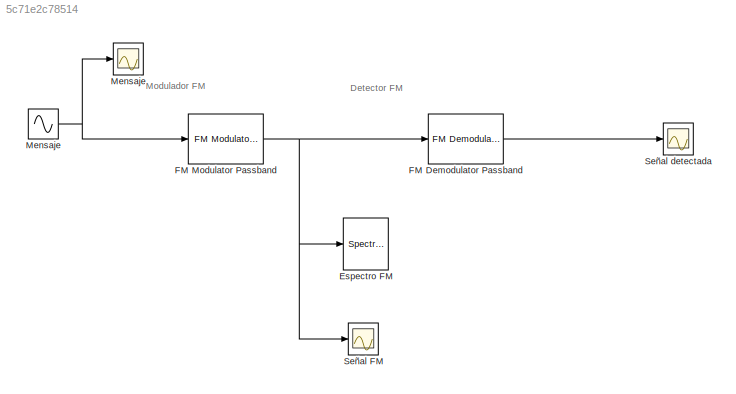
MODEL slx_5c71e2c78514
KIND model
CONFIG AbsTol = auto
CONFIG EnableMultiTasking = off
CONFIG FixedStep = auto
CONFIG MaxStep = auto
CONFIG MinStep = auto
CONFIG RelTol = 1e-3
CONFIG SampleTimeConstraint = Unconstrained
CONFIG SolverName = VariableStepAuto
CONFIG StartTime = 0.0
CONFIG StopTime = 10
WORKSPACE source: mxarray member
WORKSPACE fd = 200
WORKSPACE fm = 2
WORKSPACE fp = 300
WORKSPACE fs = 5000
BLOCK [SpectrumAnalyzer] Espectro FM
  Ports = [1]
  ScopeSpecificationString = spbscopes.SpectrumAnalyzerBlockCfg('CurrentConfiguration', extmgr.ConfigurationSet(extmgr.Configuration('Core','General UI',true),extmgr.Configuration('Core','Source UI',true),extmgr.Configuration('Sources','WiredSimulink',true),extmgr.Configuration('Sources','SPTool',false),extmgr.Configuration('Sources','File',false),extmgr.Configuration('Sources','Workspace',false),extmgr.Configuration('Sources...<+3570ch>
BLOCK [Reference] FM Demodulator Passband  REF=commanapbnd3/FM
Demodulator
Passband
  Ports = [1, 1]
  SourceBlock = commanapbnd3/FM\nDemodulator\nPassband
  SourceProductBaseCode = CM
  SourceType = FM Demodulator Passband
BLOCK [Reference] FM Modulator Passband  REF=commanapbnd3/FM
Modulator
Passband
  Ports = [1, 1]
  SourceBlock = commanapbnd3/FM\nModulator\nPassband
  SourceProductBaseCode = CM
  SourceType = FM Modulator Passband
BLOCK [Scope] Mensaje
  Floating = off
  NumInputPorts = 1
  Ports = [1]
  ScopeSpecificationString = Simulink.scopes.TimeScopeBlockCfg('CurrentConfiguration', extmgr.ConfigurationSet(extmgr.Configuration('Core','General UI',true),extmgr.Configuration('Core','Source UI',true),extmgr.Configuration('Sources','WiredSimulink',true,'DataLoggingVariableName','ScopeData4'),extmgr.Configuration('Visuals','Time Domain',true,'SerializedDisplays',{struct('MinYLimReal','-1.25','MaxYLimReal','1.25','YLabelReal...<+1384ch>
BLOCK [Sin] Mensaje 
  Frequency = 2*pi*fm
  Ports = [0, 1]
  SampleTime = 1/fs
BLOCK [Scope] Señal FM
  Floating = off
  NumInputPorts = 1
  Ports = [1]
  ScopeSpecificationString = Simulink.scopes.TimeScopeBlockCfg('CurrentConfiguration', extmgr.ConfigurationSet(extmgr.Configuration('Core','General UI',true),extmgr.Configuration('Core','Source UI',true),extmgr.Configuration('Sources','WiredSimulink',true,'DataLoggingVariableName','ScopeData2'),extmgr.Configuration('Visuals','Time Domain',true,'SerializedDisplays',{struct('MinYLimReal','-1.02672','MaxYLimReal','1.02263','YLab...<+1452ch>
BLOCK [Scope] Señal detectada
  Floating = off
  NumInputPorts = 1
  Ports = [1]
  ScopeSpecificationString = Simulink.scopes.TimeScopeBlockCfg('CurrentConfiguration', extmgr.ConfigurationSet(extmgr.Configuration('Core','General UI',true),extmgr.Configuration('Core','Source UI',true),extmgr.Configuration('Sources','WiredSimulink',true),extmgr.Configuration('Visuals','Time Domain',true,'SerializedDisplays',{struct('MinYLimReal','-1.25641','MaxYLimReal','1.25098','YLabelReal','','MinYLimMag','0.00000','MaxY...<+1372ch>
ANNOTATION (root): Detector FM
ANNOTATION (root): Modulador FM
LINE FM Demodulator Passband:1 -> Señal detectada:1
NET FM Modulator Passband:1 -> Espectro FM:1, FM Demodulator Passband:1, Señal FM:1
NET Mensaje :1 -> FM Modulator Passband:1, Mensaje:1
note: NET lines group one-source signal fan-out (src -> all destinations, sorted); 1:1 wires keep LINE
